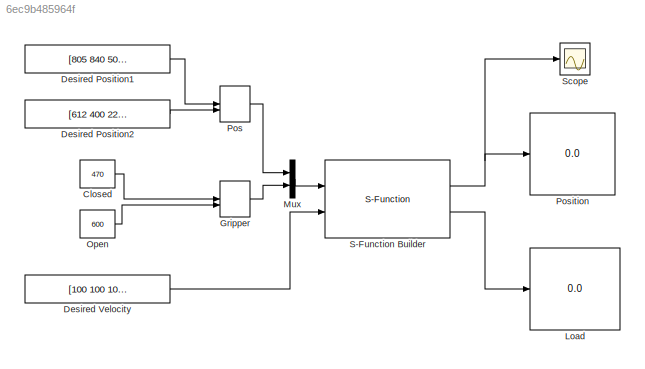
MODEL slx_6ec9b485964f
KIND model
BLOCK [Constant] Closed
  OutDataTypeStr = int16
  Value = 470
BLOCK [Constant] Desired Position1
  OutDataTypeStr = int16
  Value = [805 840 500]
BLOCK [Constant] Desired Position2
  OutDataTypeStr = int16
  Value = [612 400 220]
BLOCK [Constant] Desired Velocity
  OutDataTypeStr = int16
  Value = [100 100 100 400]
BLOCK [ManualSwitch] Gripper
BLOCK [Display] Load
  Decimation = 1
  Ports = [1]
BLOCK [Mux] Mux
  DisplayOption = bar
  Inputs = 2
  Ports = [2, 1]
BLOCK [Constant] Open
  OutDataTypeStr = int16
  Value = 600
BLOCK [ManualSwitch] Pos
BLOCK [Display] Position
  Decimation = 1
  Ports = [1]
BLOCK [S-Function] S-Function Builder
  CopyFcn = set_param(gcbh,'LinkStatus','none')
  EnableBusSupport = off
  FunctionName = sfcn_dynamixel
  InitFcn = try, set_param(gcb,'FunctionName','sfcn_dynamixel'), end
  OpenFcn = sfunctionwizard(gcbh)
  Parameters = int8(2),uint32(1000000),int8([1 2 3 4]),uint32(200)
  Ports = [2, 2]
  PreSaveFcn = try, set_param(gcb,'FunctionName','sfcn_dynamixel'), end
  SFunctionModules = sfcn_dynamixel_wrapper
BLOCK [Scope] Scope
  DataFormat = StructureWithTime
  Floating = off
  NumInputPorts = 1
  Ports = [1]
  SampleTime = 0
  ShowLegends = off
  YMax = 850
  YMin = 200
LINE Closed:1 -> Gripper:1
LINE Desired Position1:1 -> Pos:1
LINE Desired Position2:1 -> Pos:2
LINE Desired Velocity:1 -> S-Function Builder:2
LINE Gripper:1 -> Mux:2
LINE Mux:1 -> S-Function Builder:1
LINE Open:1 -> Gripper:2
LINE Pos:1 -> Mux:1
NET S-Function Builder:1 -> Position:1, Scope:1
LINE S-Function Builder:2 -> Load:1
note: NET lines group one-source signal fan-out (src -> all destinations, sorted); 1:1 wires keep LINE
